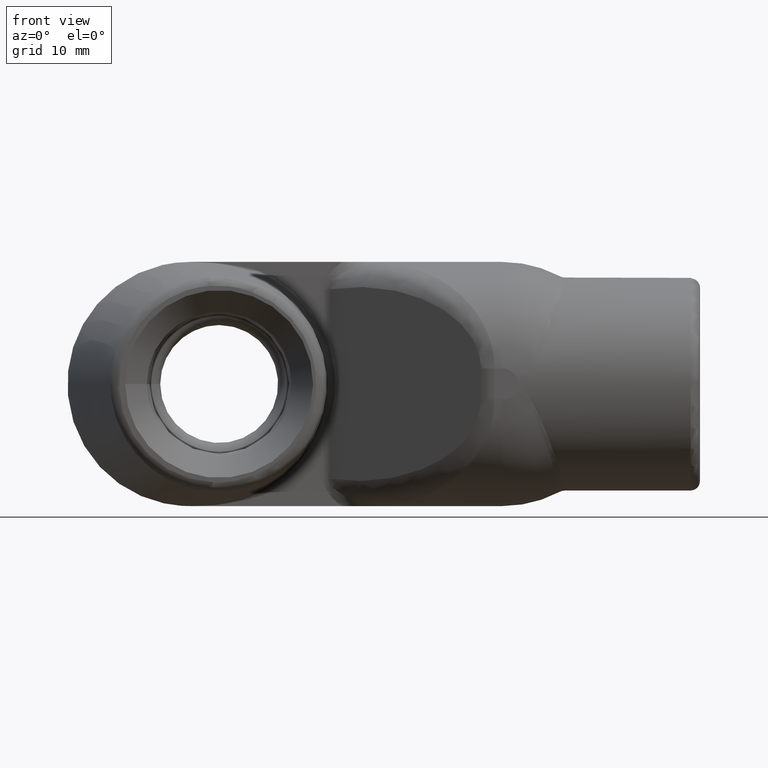
[diagram: clean part render]
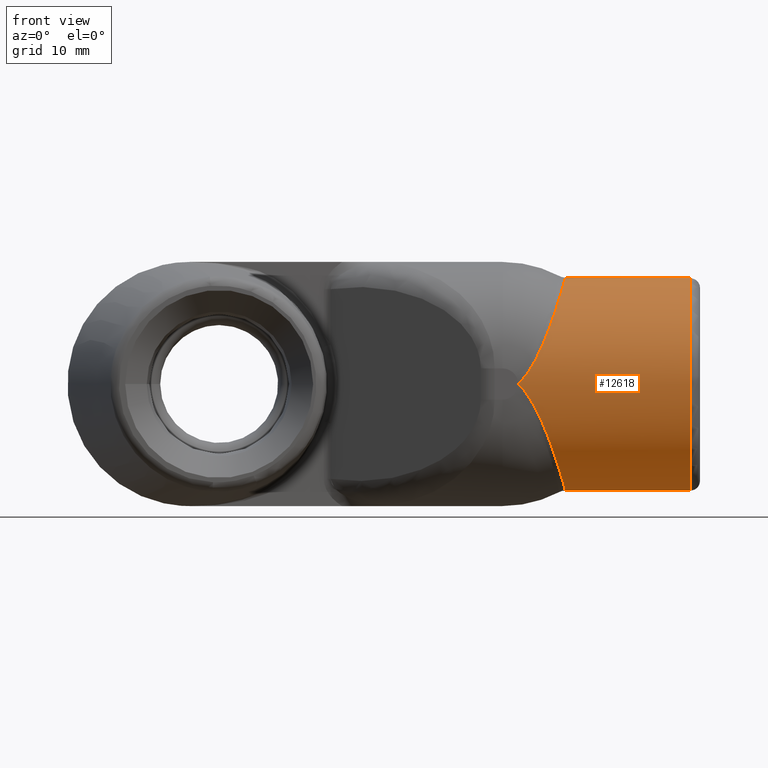
[diagram: same view with one face highlighted and labeled with its STEP entity id]
A machine part, front view. The second image highlights one B-rep face of the part: STEP entity #12618.
In plain terms, the highlighted cylindrical surface (bore or boss wall) has radius 13.4937 mm, axis along (-1, 0, 0).
Its self-contained STEP definition (entity closure, byte-faithful):
#133=CYLINDRICAL_SURFACE('',#13452,0.53125);
#299=CIRCLE('',#13427,0.53125);
#301=CIRCLE('',#13429,0.53125);
#767=FACE_OUTER_BOUND('',#1567,.T.);
#1567=EDGE_LOOP('',(#9108,#9109,#9110,#9111,#9112,#9113,#9114,#9115));
#2419=LINE('',#23480,#3149);
#3149=VECTOR('',#14391,0.53125);
#4123=B_SPLINE_CURVE_WITH_KNOTS('',3,(#23377,#23378,#23379,#23380,#23381,
#23382,#23383,#23384,#23385,#23386,#23387,#23388,#23389,#23390,#23391,#23392,
#23393,#23394,#23395,#23396,#23397,#23398,#23399,#23400,#23401,#23402,#23403,
#23404,#23405,#23406,#23407,#23408,#23409),.UNSPECIFIED.,.F.,.F.,(4,1,1,
2,2,1,2,2,1,2,2,1,2,2,1,2,2,1,2,4),(-2.47173665047067,-1.8339121837864,
-1.51499995044426,-1.19608771710212,-1.1555796351957,-0.864042205093261,
-0.572504774990824,-0.55903255862019,-0.432349952667692,-0.305667346715194,
-0.29990099354375,-0.228847547940868,-0.157794102337986,-0.15531539760831,
-0.109198619170495,-0.0630818407326799,-0.0622052897534981,-0.0311026448767491,
0.,0.00203275463461672),.UNSPECIFIED.);
#4126=B_SPLINE_CURVE_WITH_KNOTS('',3,(#23453,#23454,#23455,#23456,#23457,
#23458,#23459,#23460,#23461,#23462,#23463,#23464,#23465,#23466,#23467,#23468,
#23469,#23470,#23471,#23472,#23473,#23474,#23475,#23476,#23477,#23478,#23479),
 .UNSPECIFIED.,.F.,.F.,(4,2,2,2,2,2,2,2,2,2,2,2,1,4),(2.5596025696217,2.55960972929871,
2.88942123409466,2.89328118235396,3.23483853613791,3.24278321452374,3.61057973705938,
3.62285822125097,4.03265989842659,4.04945644188645,4.54408076948189,4.56793568244085,
4.84423299931018,5.12053031617951),.UNSPECIFIED.);
#4127=B_SPLINE_CURVE_WITH_KNOTS('',3,(#23482,#23483,#23484,#23485,#23486,
#23487,#23488,#23489,#23490,#23491,#23492,#23493,#23494,#23495,#23496,#23497,
#23498,#23499,#23500,#23501,#23502,#23503,#23504,#23505,#23506),
 .UNSPECIFIED.,.F.,.F.,(4,1,2,2,2,2,2,2,2,2,2,2,4),(-0.00138454993409798,
0.274968844726991,0.551322239388081,0.575160353584437,1.0697638680224,1.08657309881348,
1.49641283870781,1.5086824499646,1.8764133871427,1.88436137843578,2.22596947820566,
2.22982867987252,2.5596025696217),.UNSPECIFIED.);
#4128=B_SPLINE_CURVE_WITH_KNOTS('',3,(#23507,#23508,#23509,#23510,#23511,
#23512,#23513,#23514,#23515,#23516,#23517,#23518,#23519,#23520,#23521,#23522,
#23523,#23524,#23525,#23526,#23527,#23528,#23529,#23530,#23531,#23532,#23533,
#23534,#23535,#23536,#23537,#23538,#23539),.UNSPECIFIED.,.F.,.F.,(4,2,1,
2,2,1,2,2,1,2,2,1,2,2,1,2,2,1,1,4),(-2.47182289191029,-2.46978958029083,
-2.43859576166817,-2.4074019430455,-2.40651664094458,-2.36079820593245,
-2.31507977092032,-2.31265881630138,-2.24155121632089,-2.17044361634039,
-2.16456519127273,-2.03772277072313,-1.91088035017352,-1.89753492186006,
-1.60649282579015,-1.31545072972025,-1.27491035215946,-0.636723704064504,
-0.317630380017026,0.00146294403045122),.UNSPECIFIED.);
#5350=VERTEX_POINT('',#22935);
#5351=VERTEX_POINT('',#22936);
#5371=VERTEX_POINT('',#23375);
#5372=VERTEX_POINT('',#23376);
#5374=VERTEX_POINT('',#23452);
#5375=VERTEX_POINT('',#23481);
#6781=EDGE_CURVE('',#5350,#5351,#299,.T.);
#6783=EDGE_CURVE('',#5351,#5350,#301,.T.);
#6814=EDGE_CURVE('',#5371,#5372,#4123,.T.);
#6817=EDGE_CURVE('',#5374,#5371,#4126,.T.);
#6818=EDGE_CURVE('',#5374,#5350,#2419,.T.);
#6819=EDGE_CURVE('',#5375,#5374,#4127,.T.);
#6820=EDGE_CURVE('',#5372,#5375,#4128,.T.);
#9108=ORIENTED_EDGE('',*,*,#6814,.F.);
#9109=ORIENTED_EDGE('',*,*,#6817,.F.);
#9110=ORIENTED_EDGE('',*,*,#6818,.T.);
#9111=ORIENTED_EDGE('',*,*,#6783,.F.);
#9112=ORIENTED_EDGE('',*,*,#6781,.F.);
#9113=ORIENTED_EDGE('',*,*,#6818,.F.);
#9114=ORIENTED_EDGE('',*,*,#6819,.F.);
#9115=ORIENTED_EDGE('',*,*,#6820,.F.);
#12618=ADVANCED_FACE('',(#767),#133,.T.);
#13427=AXIS2_PLACEMENT_3D('',#22937,#14332,#14333);
#13429=AXIS2_PLACEMENT_3D('',#22939,#14336,#14337);
#13452=AXIS2_PLACEMENT_3D('',#23451,#14389,#14390);
#14332=DIRECTION('center_axis',(1.,0.,0.));
#14333=DIRECTION('ref_axis',(0.,-1.,0.));
#14336=DIRECTION('center_axis',(1.,0.,0.));
#14337=DIRECTION('ref_axis',(0.,-1.,0.));
#14389=DIRECTION('center_axis',(-1.,0.,0.));
#14390=DIRECTION('ref_axis',(0.,-1.,0.));
#14391=DIRECTION('',(1.,0.,0.));
#22935=CARTESIAN_POINT('',(1.71937177696649,0.53125,6.50593612047031E-17));
#22936=CARTESIAN_POINT('',(1.71937177696649,-2.39897632799216E-16,-0.53125));
#22937=CARTESIAN_POINT('Origin',(1.71937177696649,-1.74838271594513E-16,
0.));
#22939=CARTESIAN_POINT('Origin',(1.71937177696649,-1.74838271594513E-16,
0.));
#23375=CARTESIAN_POINT('',(1.09484638353954,0.000515358720818232,-0.531249750028542));
#23376=CARTESIAN_POINT('',(0.858864663165304,-0.53125,-4.69484468799166E-13));
#23377=CARTESIAN_POINT('Ctrl Pts',(1.09484638353954,0.000515358720818261,
-0.531249750028543));
#23378=CARTESIAN_POINT('Ctrl Pts',(1.0948665319331,-0.0743845930160127,
-0.531322409532504));
#23379=CARTESIAN_POINT('Ctrl Pts',(1.08824732010894,-0.187846796593132,
-0.506925802545141));
#23380=CARTESIAN_POINT('Ctrl Pts',(1.0659732549671,-0.31703133079338,-0.431094493472193));
#23381=CARTESIAN_POINT('Ctrl Pts',(1.05000716498469,-0.372467913777828,
-0.38060104846904));
#23382=CARTESIAN_POINT('Ctrl Pts',(1.03968637323899,-0.399893188880765,
-0.349774164974772));
#23383=CARTESIAN_POINT('Ctrl Pts',(1.03850448069445,-0.402933583464875,
-0.346268364897187));
#23384=CARTESIAN_POINT('Ctrl Pts',(1.02865376621964,-0.42743824504001,-0.317247844838289));
#23385=CARTESIAN_POINT('Ctrl Pts',(1.00904770137568,-0.465709631320683,
-0.262033642791125));
#23386=CARTESIAN_POINT('Ctrl Pts',(0.984495299280523,-0.492356669449222,
-0.202077273564213));
#23387=CARTESIAN_POINT('Ctrl Pts',(0.96999965252996,-0.503165011651263,
-0.170455941220374));
#23388=CARTESIAN_POINT('Ctrl Pts',(0.969354858217028,-0.503636866530051,
-0.16905701145332));
#23389=CARTESIAN_POINT('Ctrl Pts',(0.962612133311187,-0.508478063514813,
-0.154500737906696));
#23390=CARTESIAN_POINT('Ctrl Pts',(0.949751035566715,-0.516137376290454,
-0.128014934256792));
#23391=CARTESIAN_POINT('Ctrl Pts',(0.935323837225906,-0.521599745996639,
-0.101661230963177));
#23392=CARTESIAN_POINT('Ctrl Pts',(0.927260642036826,-0.523899794510875,
-0.0880709311149485));
#23393=CARTESIAN_POINT('Ctrl Pts',(0.926908445614239,-0.523998875150974,
-0.0874795571171147));
#23394=CARTESIAN_POINT('Ctrl Pts',(0.922203366466034,-0.52530383755399,
-0.0796076818766031));
#23395=CARTESIAN_POINT('Ctrl Pts',(0.913143827547363,-0.527394225508242,
-0.0651114033753564));
#23396=CARTESIAN_POINT('Ctrl Pts',(0.903272532168372,-0.528850910266054,
-0.0509151248928372));
#23397=CARTESIAN_POINT('Ctrl Pts',(0.897917870975245,-0.529448649092231,
-0.043714924285871));
#23398=CARTESIAN_POINT('Ctrl Pts',(0.897737048076648,-0.529468624141943,
-0.0434723659822138));
#23399=CARTESIAN_POINT('Ctrl Pts',(0.894186502812545,-0.529856553085167,
-0.0387206555697578));
#23400=CARTESIAN_POINT('Ctrl Pts',(0.887241929938212,-0.530466678693498,
-0.0298233468440256));
#23401=CARTESIAN_POINT('Ctrl Pts',(0.87984096803356,-0.530842003441224,
-0.0212372642360877));
#23402=CARTESIAN_POINT('Ctrl Pts',(0.875932459346616,-0.530979078726393,
-0.0169665323314639));
#23403=CARTESIAN_POINT('Ctrl Pts',(0.875859501573376,-0.530981617759276,
-0.0168869087051075));
#23404=CARTESIAN_POINT('Ctrl Pts',(0.873196065714113,-0.53107351035089,
-0.0139833713826027));
#23405=CARTESIAN_POINT('Ctrl Pts',(0.867891902772511,-0.531204087149771,
-0.00843097527262178));
#23406=CARTESIAN_POINT('Ctrl Pts',(0.862305085295569,-0.531247298759913,
-0.00309910416029977));
#23407=CARTESIAN_POINT('Ctrl Pts',(0.859241623816566,-0.531249919093216,
-0.000337822212971502));
#23408=CARTESIAN_POINT('Ctrl Pts',(0.859053327897984,-0.53125,-0.000168750029091681));
#23409=CARTESIAN_POINT('Ctrl Pts',(0.858864663165304,-0.53125,1.36592399683213E-18));
#23451=CARTESIAN_POINT('Origin',(1.76652228896682,-1.74838271594513E-16,
0.));
#23452=CARTESIAN_POINT('',(1.44198370594496,0.53125,1.05578196350255E-11));
#23453=CARTESIAN_POINT('Ctrl Pts',(1.44198824255975,0.531254723885869,1.7819040332574E-10));
#23454=CARTESIAN_POINT('Ctrl Pts',(1.44198824259379,0.531254723886049,-8.4063513815539E-7));
#23455=CARTESIAN_POINT('Ctrl Pts',(1.44198824262583,0.531254723884204,-1.68144848475965E-6));
#23456=CARTESIAN_POINT('Ctrl Pts',(1.44198962606826,0.531254545714976,-0.0387347053523534));
#23457=CARTESIAN_POINT('Ctrl Pts',(1.43773556033279,0.526960053088751,-0.0774293426715802));
#23458=CARTESIAN_POINT('Ctrl Pts',(1.42960145691318,0.518651110049859,-0.115019408645335));
#23459=CARTESIAN_POINT('Ctrl Pts',(1.42950694811989,0.518554564811666,-0.115454050089526));
#23460=CARTESIAN_POINT('Ctrl Pts',(1.42100070920645,0.509864472696457,-0.154339224685141));
#23461=CARTESIAN_POINT('Ctrl Pts',(1.40858549579925,0.497125137340451,-0.191094914814882));
#23462=CARTESIAN_POINT('Ctrl Pts',(1.39289696135095,0.480775119756624,-0.22601566051892));
#23463=CARTESIAN_POINT('Ctrl Pts',(1.39253884272529,0.480401810735695,-0.226808229166567));
#23464=CARTESIAN_POINT('Ctrl Pts',(1.37552290275675,0.462657566181561,-0.264229847187321));
#23465=CARTESIAN_POINT('Ctrl Pts',(1.35554986507402,0.44159930431728,-0.2978222895033));
#23466=CARTESIAN_POINT('Ctrl Pts',(1.33294005971022,0.417035135314567,-0.329103476746939));
#23467=CARTESIAN_POINT('Ctrl Pts',(1.33220733605161,0.416238504737661,-0.330110637999773));
#23468=CARTESIAN_POINT('Ctrl Pts',(1.30695036903417,0.388740771322652,-0.364603508562232));
#23469=CARTESIAN_POINT('Ctrl Pts',(1.28009131251189,0.358736210190669,-0.394013577223369));
#23470=CARTESIAN_POINT('Ctrl Pts',(1.25164544448105,0.32467966175267,-0.420486390586694));
#23471=CARTESIAN_POINT('Ctrl Pts',(1.2505233431849,0.323334142538708,-0.421522477757595));
#23472=CARTESIAN_POINT('Ctrl Pts',(1.21642130883642,0.282197030284887,-0.452841127623616));
#23473=CARTESIAN_POINT('Ctrl Pts',(1.18247001867763,0.238561833742733,-0.477470514175812));
#23474=CARTESIAN_POINT('Ctrl Pts',(1.15185597658387,0.18779394837528,-0.496947935218113));
#23475=CARTESIAN_POINT('Ctrl Pts',(1.1504614306893,0.1854456295443,-0.497829093766344));
#23476=CARTESIAN_POINT('Ctrl Pts',(1.1331257299419,0.155744118852049,-0.508722107943016));
#23477=CARTESIAN_POINT('Ctrl Pts',(1.10430348699231,0.0978825936226655,
-0.524999880543966));
#23478=CARTESIAN_POINT('Ctrl Pts',(1.09352266590245,0.0329349542049872,
-0.531218300185494));
#23479=CARTESIAN_POINT('Ctrl Pts',(1.09484638353954,0.000515358720818278,
-0.531249750028542));
#23480=CARTESIAN_POINT('',(1.76652228896682,0.53125,-6.50593612047031E-17));
#23481=CARTESIAN_POINT('',(1.09481198264718,0.000515358413872132,0.53124975002884));
#23482=CARTESIAN_POINT('Ctrl Pts',(1.09481198264718,0.000515358413872082,
0.53124975002884));
#23483=CARTESIAN_POINT('Ctrl Pts',(1.09348805202518,0.0329419799010696,
0.531218293388689));
#23484=CARTESIAN_POINT('Ctrl Pts',(1.10426947074821,0.0978919699810122,
0.524999011675481));
#23485=CARTESIAN_POINT('Ctrl Pts',(1.13310480688384,0.155769424703123,0.508714981328773));
#23486=CARTESIAN_POINT('Ctrl Pts',(1.15045020067096,0.185468989149159,0.497820556005448));
#23487=CARTESIAN_POINT('Ctrl Pts',(1.15184444528232,0.187815449296363,0.496940019082832));
#23488=CARTESIAN_POINT('Ctrl Pts',(1.18247066977732,0.2385723083198,0.477464144011987));
#23489=CARTESIAN_POINT('Ctrl Pts',(1.21645065688196,0.282191076095375,0.452844549648521));
#23490=CARTESIAN_POINT('Ctrl Pts',(1.25054731677745,0.323329707341608,0.421525910106024));
#23491=CARTESIAN_POINT('Ctrl Pts',(1.25167005236103,0.324676336653069,0.420488975546507));
#23492=CARTESIAN_POINT('Ctrl Pts',(1.28011334652974,0.358739995621142,0.394011200720177));
#23493=CARTESIAN_POINT('Ctrl Pts',(1.30694142628414,0.388758809420515,0.364585360463181));
#23494=CARTESIAN_POINT('Ctrl Pts',(1.33219481611174,0.416257472280231,0.330086730534925));
#23495=CARTESIAN_POINT('Ctrl Pts',(1.33292690630494,0.417053513038069,0.329080210894426));
#23496=CARTESIAN_POINT('Ctrl Pts',(1.35552944826009,0.441611743648162,0.297802858405352));
#23497=CARTESIAN_POINT('Ctrl Pts',(1.37552358451814,0.462659665438992,0.26422440502048));
#23498=CARTESIAN_POINT('Ctrl Pts',(1.39254477600008,0.480400296153948,0.226811418789922));
#23499=CARTESIAN_POINT('Ctrl Pts',(1.39290319519851,0.480773738252337,0.226018575574346));
#23500=CARTESIAN_POINT('Ctrl Pts',(1.40860087093406,0.497125810059087,0.191093999474745));
#23501=CARTESIAN_POINT('Ctrl Pts',(1.42100612186563,0.509867895715512,0.154329790464192));
#23502=CARTESIAN_POINT('Ctrl Pts',(1.4295079478453,0.518558018942333,0.11543857099372));
#23503=CARTESIAN_POINT('Ctrl Pts',(1.42960238035106,0.518654536082798,0.115003999900371));
#23504=CARTESIAN_POINT('Ctrl Pts',(1.43773050047467,0.526961552025592,0.0774172539572895));
#23505=CARTESIAN_POINT('Ctrl Pts',(1.44198667456253,0.531254715614486,0.0387277641967416));
#23506=CARTESIAN_POINT('Ctrl Pts',(1.44198824255975,0.531254723885869,1.7819040332574E-10));
#23507=CARTESIAN_POINT('Ctrl Pts',(0.858864663165304,-0.53125,1.36592399683213E-18));
#23508=CARTESIAN_POINT('Ctrl Pts',(0.859053317780805,-0.53125,0.000168851666649056));
#23509=CARTESIAN_POINT('Ctrl Pts',(0.859241603968434,-0.531249919147797,
0.000338025045733762));
#23510=CARTESIAN_POINT('Ctrl Pts',(0.862312533662039,-0.531247284247529,
0.00310784761604843));
#23511=CARTESIAN_POINT('Ctrl Pts',(0.867911698317801,-0.531203834116849,
0.00845512058356818));
#23512=CARTESIAN_POINT('Ctrl Pts',(0.873235717707699,-0.531072334161095,
0.0140295371540208));
#23513=CARTESIAN_POINT('Ctrl Pts',(0.875910475973565,-0.530979742755818,
0.0169450711971065));
#23514=CARTESIAN_POINT('Ctrl Pts',(0.87598424651175,-0.530977167128302,
0.0170255712963808));
#23515=CARTESIAN_POINT('Ctrl Pts',(0.879864829899282,-0.530840600994225,
0.0212652548044207));
#23516=CARTESIAN_POINT('Ctrl Pts',(0.887219012563631,-0.530467941870149,
0.0297864938248741));
#23517=CARTESIAN_POINT('Ctrl Pts',(0.894124424782963,-0.529863114813911,
0.0386268890662602));
#23518=CARTESIAN_POINT('Ctrl Pts',(0.897651144169521,-0.529478785443452,
0.0433476078978591));
#23519=CARTESIAN_POINT('Ctrl Pts',(0.897828228850134,-0.529459278316896,
0.0435851960859283));
#23520=CARTESIAN_POINT('Ctrl Pts',(0.903197228077895,-0.528861633485833,
0.0508062854868837));
#23521=CARTESIAN_POINT('Ctrl Pts',(0.913094679109879,-0.52740111017542,
0.0650666202692642));
#23522=CARTESIAN_POINT('Ctrl Pts',(0.922184816015869,-0.525300959310321,
0.0796275516524717));
#23523=CARTESIAN_POINT('Ctrl Pts',(0.92690600729752,-0.523991095386024,
0.0875253913108451));
#23524=CARTESIAN_POINT('Ctrl Pts',(0.927265310081988,-0.523889968338992,
0.088128602988821));
#23525=CARTESIAN_POINT('Ctrl Pts',(0.935346900817445,-0.521583097901717,
0.101747291866415));
#23526=CARTESIAN_POINT('Ctrl Pts',(0.949804596152378,-0.51611490812014,
0.128106108302722));
#23527=CARTESIAN_POINT('Ctrl Pts',(0.962688605238929,-0.508445073569476,
0.154609536768125));
#23528=CARTESIAN_POINT('Ctrl Pts',(0.969430635192349,-0.503601314317217,
0.169161985576532));
#23529=CARTESIAN_POINT('Ctrl Pts',(0.970069103399742,-0.503133897875619,
0.170546960227198));
#23530=CARTESIAN_POINT('Ctrl Pts',(0.98453085919948,-0.492345550922672,
0.202092982057649));
#23531=CARTESIAN_POINT('Ctrl Pts',(1.00902964229561,-0.465721798841393,
0.26199373085469));
#23532=CARTESIAN_POINT('Ctrl Pts',(1.02858801744451,-0.42752461183612,0.317119406069229));
#23533=CARTESIAN_POINT('Ctrl Pts',(1.03842625256629,-0.403055393719393,
0.346121286840601));
#23534=CARTESIAN_POINT('Ctrl Pts',(1.03960796533831,-0.400022251558771,
0.349623577027127));
#23535=CARTESIAN_POINT('Ctrl Pts',(1.05914648492819,-0.348009627301513,
0.40809975446623));
#23536=CARTESIAN_POINT('Ctrl Pts',(1.07932238361207,-0.256092999773702,
0.4762269917803));
#23537=CARTESIAN_POINT('Ctrl Pts',(1.09262906512994,-0.112195123902561,
0.523279964006512));
#23538=CARTESIAN_POINT('Ctrl Pts',(1.09482206319701,-0.0369558828899633,
0.531286100388503));
#23539=CARTESIAN_POINT('Ctrl Pts',(1.09481198264718,0.000515358413872104,
0.53124975002884));